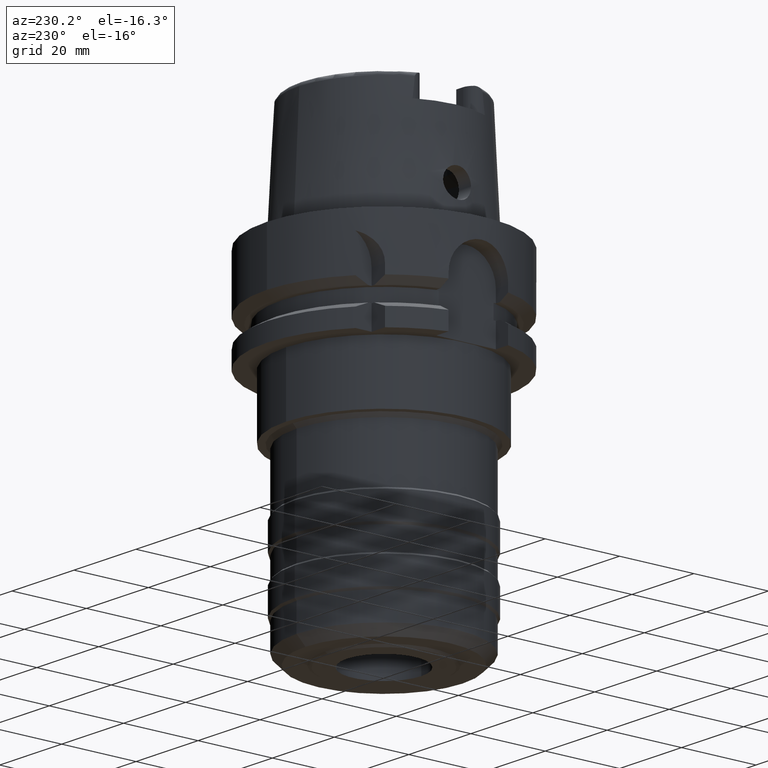
[diagram: clean part render]
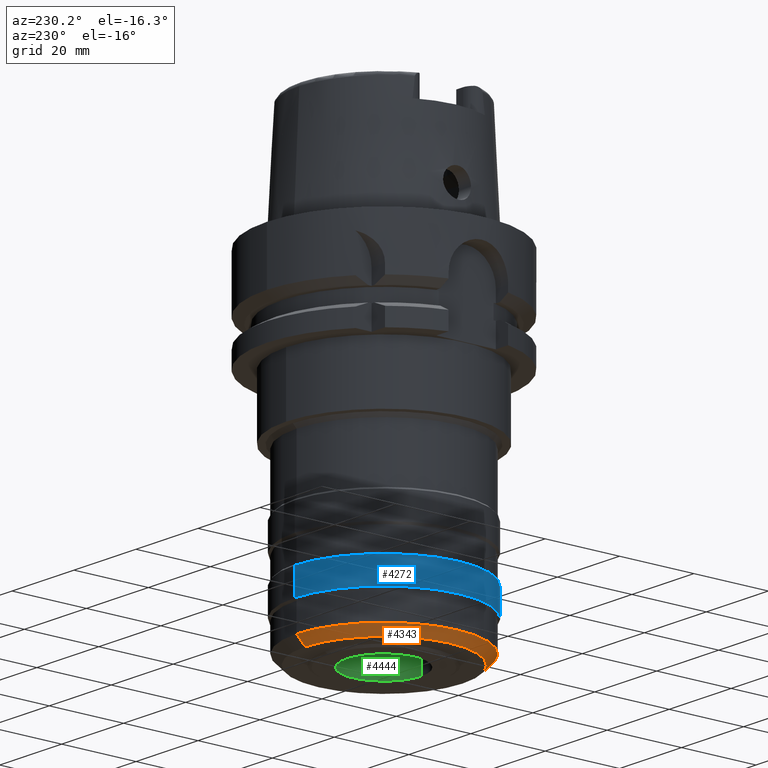
[diagram: same view with three faces highlighted in distinct colors, each labeled with its STEP entity id]
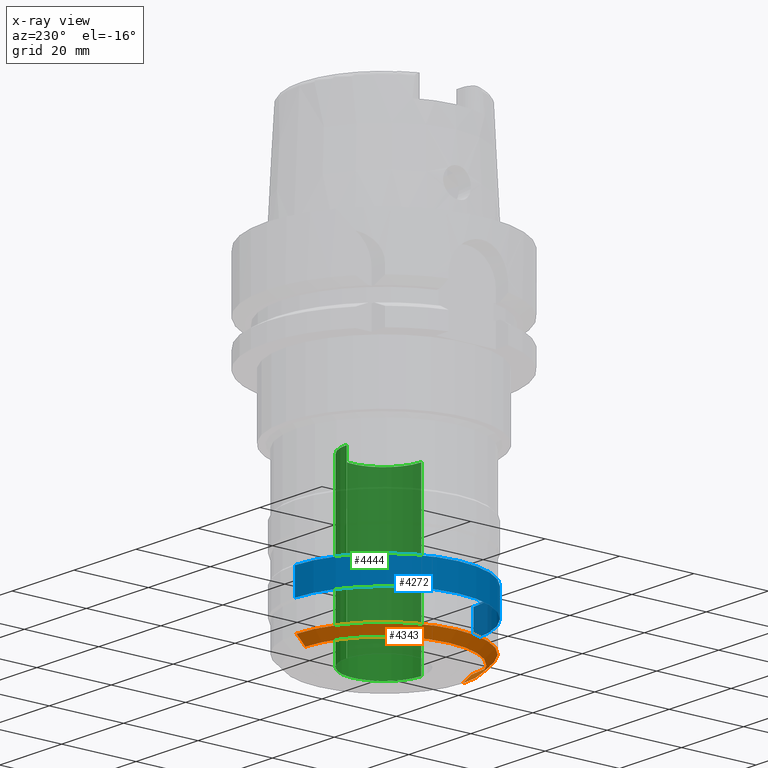
[diagram: x-ray of the same camera — body ghosted, the three highlighted faces saturated]
A machine part, auxiliary view with three faces highlighted in distinct colors.
The next image is the same camera in x-ray (body ghosted, the three faces saturated) — at least one of them is partly hidden behind the body in this view.
Their STEP definitions:

[orange] entity #4343 — the highlighted conical surface has half-angle 45 deg.
#1962=CARTESIAN_POINT('',(0.E0,0.E0,-8.7157E1));
#1963=DIRECTION('',(0.E0,0.E0,1.E0));
#1964=DIRECTION('',(0.E0,1.E0,0.E0));
#1965=AXIS2_PLACEMENT_3D('',#1962,#1963,#1964);
#1970=DIRECTION('',(0.E0,7.071067811865E-1,-7.071067811865E-1));
#1971=VECTOR('',#1970,3.313502376640E0);
#1972=CARTESIAN_POINT('',(0.E0,-2.35E1,-8.7157E1));
#1973=LINE('',#1972,#1971);
#1977=DIRECTION('',(0.E0,-7.071067811866E-1,-7.071067811865E-1));
#1978=VECTOR('',#1977,3.313502376640E0);
#1979=CARTESIAN_POINT('',(0.E0,2.35E1,-8.7157E1));
#1980=LINE('',#1979,#1978);
#2000=CARTESIAN_POINT('',(0.E0,0.E0,-8.95E1));
#2001=DIRECTION('',(0.E0,0.E0,1.E0));
#2002=DIRECTION('',(0.E0,1.E0,0.E0));
#2003=AXIS2_PLACEMENT_3D('',#2000,#2001,#2002);
#2777=CARTESIAN_POINT('',(0.E0,2.35E1,-8.7157E1));
#2778=VERTEX_POINT('',#2777);
#2779=CARTESIAN_POINT('',(0.E0,-2.35E1,-8.7157E1));
#2780=VERTEX_POINT('',#2779);
#2781=CARTESIAN_POINT('',(0.E0,2.1157E1,-8.95E1));
#2782=VERTEX_POINT('',#2781);
#2783=CARTESIAN_POINT('',(0.E0,-2.1157E1,-8.95E1));
#2784=VERTEX_POINT('',#2783);
#4329=CARTESIAN_POINT('',(0.E0,0.E0,-8.83285E1));
#4330=DIRECTION('',(0.E0,0.E0,1.E0));
#4331=DIRECTION('',(0.E0,1.E0,0.E0));
#4332=AXIS2_PLACEMENT_3D('',#4329,#4330,#4331);
#4333=CONICAL_SURFACE('',#4332,2.23285E1,4.5E1);
#4335=ORIENTED_EDGE('',*,*,#4334,.F.);
#4336=ORIENTED_EDGE('',*,*,#4324,.T.);
#4338=ORIENTED_EDGE('',*,*,#4337,.T.);
#4340=ORIENTED_EDGE('',*,*,#4339,.F.);
#4341=EDGE_LOOP('',(#4335,#4336,#4338,#4340));
#4342=FACE_OUTER_BOUND('',#4341,.F.);
#1966=CIRCLE('',#1965,2.35E1);
#2004=CIRCLE('',#2003,2.1157E1);
#4324=EDGE_CURVE('',#2778,#2780,#1966,.T.);
#4334=EDGE_CURVE('',#2778,#2782,#1980,.T.);
#4337=EDGE_CURVE('',#2780,#2784,#1973,.T.);
#4339=EDGE_CURVE('',#2782,#2784,#2004,.T.);
#4343=ADVANCED_FACE('',(#4342),#4333,.T.);

[blue] entity #4272 — the highlighted cylindrical surface (partial cylindrical patch) has radius 24 mm, axis along (0, 0, -1).
#1857=CARTESIAN_POINT('',(0.E0,0.E0,-7.25E1));
#1858=DIRECTION('',(0.E0,0.E0,-1.E0));
#1859=DIRECTION('',(0.E0,-1.E0,0.E0));
#1860=AXIS2_PLACEMENT_3D('',#1857,#1858,#1859);
#1888=DIRECTION('',(0.E0,0.E0,-1.E0));
#1889=VECTOR('',#1888,7.E0);
#1890=CARTESIAN_POINT('',(0.E0,2.4E1,-7.25E1));
#1891=LINE('',#1890,#1889);
#1895=DIRECTION('',(0.E0,0.E0,-1.E0));
#1896=VECTOR('',#1895,7.E0);
#1897=CARTESIAN_POINT('',(0.E0,-2.4E1,-7.25E1));
#1898=LINE('',#1897,#1896);
#1902=CARTESIAN_POINT('',(0.E0,0.E0,-7.95E1));
#1903=DIRECTION('',(0.E0,0.E0,1.E0));
#1904=DIRECTION('',(0.E0,1.E0,0.E0));
#1905=AXIS2_PLACEMENT_3D('',#1902,#1903,#1904);
#2765=CARTESIAN_POINT('',(0.E0,2.4E1,-7.25E1));
#2766=VERTEX_POINT('',#2765);
#2767=CARTESIAN_POINT('',(0.E0,-2.4E1,-7.25E1));
#2768=VERTEX_POINT('',#2767);
#2769=CARTESIAN_POINT('',(0.E0,2.4E1,-7.95E1));
#2770=VERTEX_POINT('',#2769);
#2771=CARTESIAN_POINT('',(0.E0,-2.4E1,-7.95E1));
#2772=VERTEX_POINT('',#2771);
#4260=CARTESIAN_POINT('',(0.E0,1.691237229622E-14,3.81E1));
#4261=DIRECTION('',(0.E0,0.E0,-1.E0));
#4262=DIRECTION('',(0.E0,-1.E0,0.E0));
#4263=AXIS2_PLACEMENT_3D('',#4260,#4261,#4262);
#4264=CYLINDRICAL_SURFACE('',#4263,2.4E1);
#4265=ORIENTED_EDGE('',*,*,#4250,.F.);
#4266=ORIENTED_EDGE('',*,*,#4227,.F.);
#4267=ORIENTED_EDGE('',*,*,#4254,.T.);
#4269=ORIENTED_EDGE('',*,*,#4268,.F.);
#4270=EDGE_LOOP('',(#4265,#4266,#4267,#4269));
#4271=FACE_OUTER_BOUND('',#4270,.F.);
#1861=CIRCLE('',#1860,2.4E1);
#1906=CIRCLE('',#1905,2.4E1);
#4227=EDGE_CURVE('',#2768,#2766,#1861,.T.);
#4250=EDGE_CURVE('',#2766,#2770,#1891,.T.);
#4254=EDGE_CURVE('',#2768,#2772,#1898,.T.);
#4268=EDGE_CURVE('',#2770,#2772,#1906,.T.);
#4272=ADVANCED_FACE('',(#4271),#4264,.T.);

[green] entity #4444 — the highlighted cylindrical surface (partial cylindrical patch) has radius 10 mm, axis along (0, 0, -1).
#2062=CARTESIAN_POINT('',(0.E0,1.691237229622E-14,-9.E1));
#2063=DIRECTION('',(0.E0,0.E0,-1.E0));
#2064=DIRECTION('',(0.E0,1.E0,0.E0));
#2065=AXIS2_PLACEMENT_3D('',#2062,#2063,#2064);
#2070=DIRECTION('',(0.E0,0.E0,1.E0));
#2071=VECTOR('',#2070,4.6E1);
#2072=CARTESIAN_POINT('',(0.E0,-1.E1,-9.E1));
#2073=LINE('',#2072,#2071);
#2077=DIRECTION('',(0.E0,0.E0,1.E0));
#2078=VECTOR('',#2077,4.6E1);
#2079=CARTESIAN_POINT('',(0.E0,1.E1,-9.E1));
#2080=LINE('',#2079,#2078);
#2100=CARTESIAN_POINT('',(0.E0,1.691237229622E-14,-4.4E1));
#2101=DIRECTION('',(0.E0,0.E0,1.E0));
#2102=DIRECTION('',(0.E0,-1.E0,0.E0));
#2103=AXIS2_PLACEMENT_3D('',#2100,#2101,#2102);
#2793=CARTESIAN_POINT('',(0.E0,-1.E1,-9.E1));
#2794=CARTESIAN_POINT('',(0.E0,1.E1,-9.E1));
#2795=VERTEX_POINT('',#2793);
#2796=VERTEX_POINT('',#2794);
#2797=CARTESIAN_POINT('',(0.E0,1.E1,-4.4E1));
#2798=VERTEX_POINT('',#2797);
#2799=CARTESIAN_POINT('',(0.E0,-1.E1,-4.4E1));
#2800=VERTEX_POINT('',#2799);
#4432=CARTESIAN_POINT('',(0.E0,1.691237229622E-14,3.81E1));
#4433=DIRECTION('',(0.E0,0.E0,-1.E0));
#4434=DIRECTION('',(0.E0,-1.E0,0.E0));
#4435=AXIS2_PLACEMENT_3D('',#4432,#4433,#4434);
#4436=CYLINDRICAL_SURFACE('',#4435,1.E1);
#4437=ORIENTED_EDGE('',*,*,#4422,.T.);
#4439=ORIENTED_EDGE('',*,*,#4438,.F.);
#4440=ORIENTED_EDGE('',*,*,#4425,.F.);
#4441=ORIENTED_EDGE('',*,*,#4412,.F.);
#4442=EDGE_LOOP('',(#4437,#4439,#4440,#4441));
#4443=FACE_OUTER_BOUND('',#4442,.F.);
#2066=CIRCLE('',#2065,1.E1);
#2104=CIRCLE('',#2103,1.E1);
#4412=EDGE_CURVE('',#2796,#2795,#2066,.T.);
#4422=EDGE_CURVE('',#2796,#2798,#2080,.T.);
#4425=EDGE_CURVE('',#2795,#2800,#2073,.T.);
#4438=EDGE_CURVE('',#2800,#2798,#2104,.T.);
#4444=ADVANCED_FACE('',(#4443),#4436,.F.);